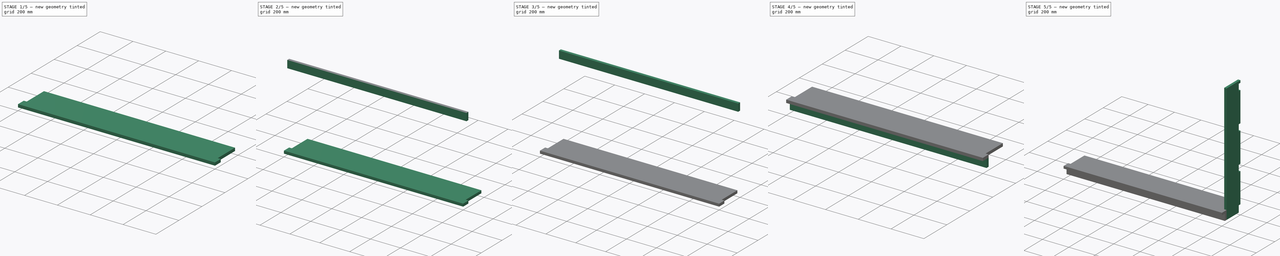
[diagram: build sequence overview — one tinted view per stage of 5, left to right]
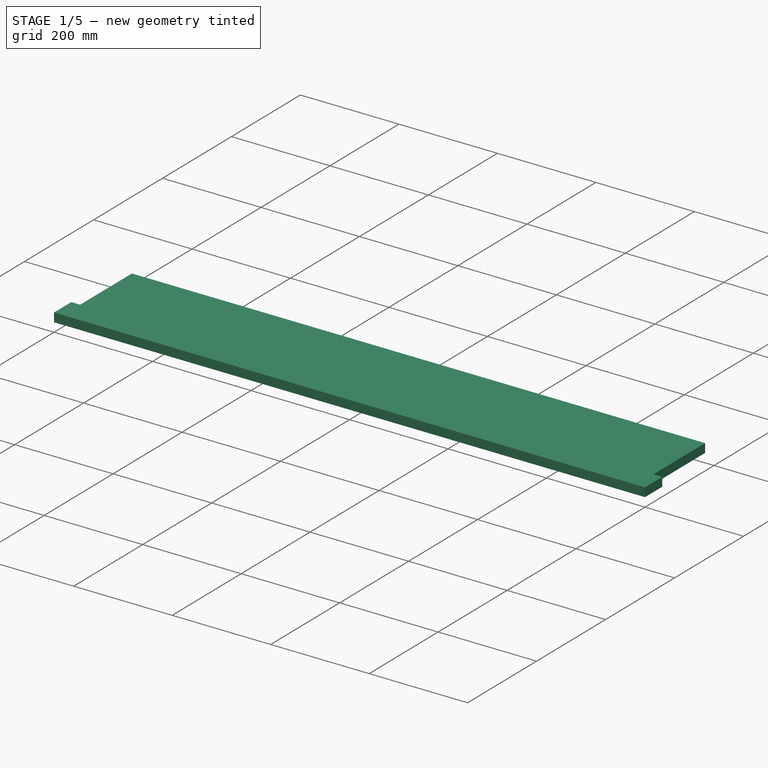
[diagram: stage 1 of 5 — iso view after this stage's code; geometry added in this stage tinted green]
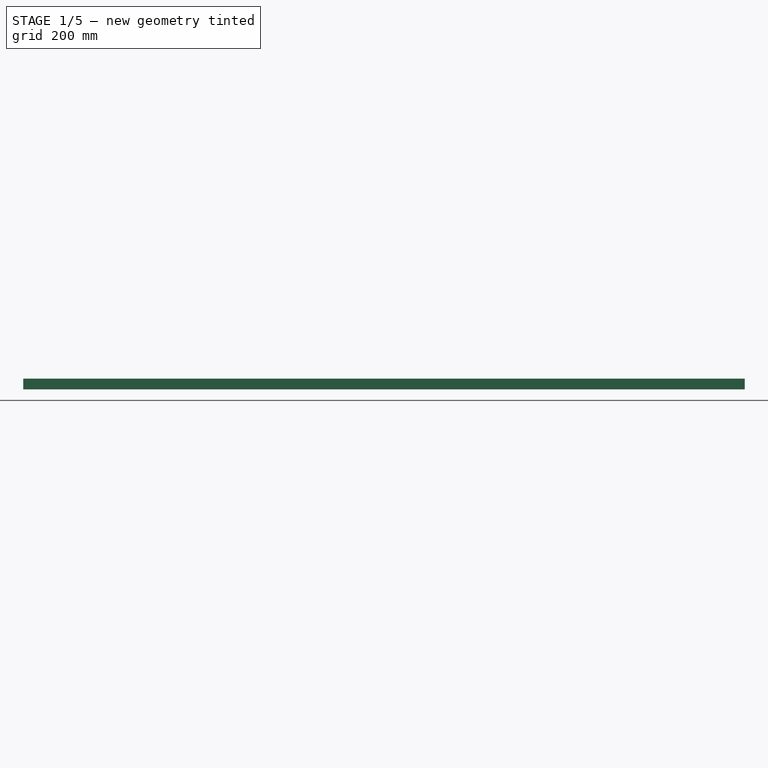
[diagram: stage 1 of 5 — front view after this stage's code; geometry added in this stage tinted green]
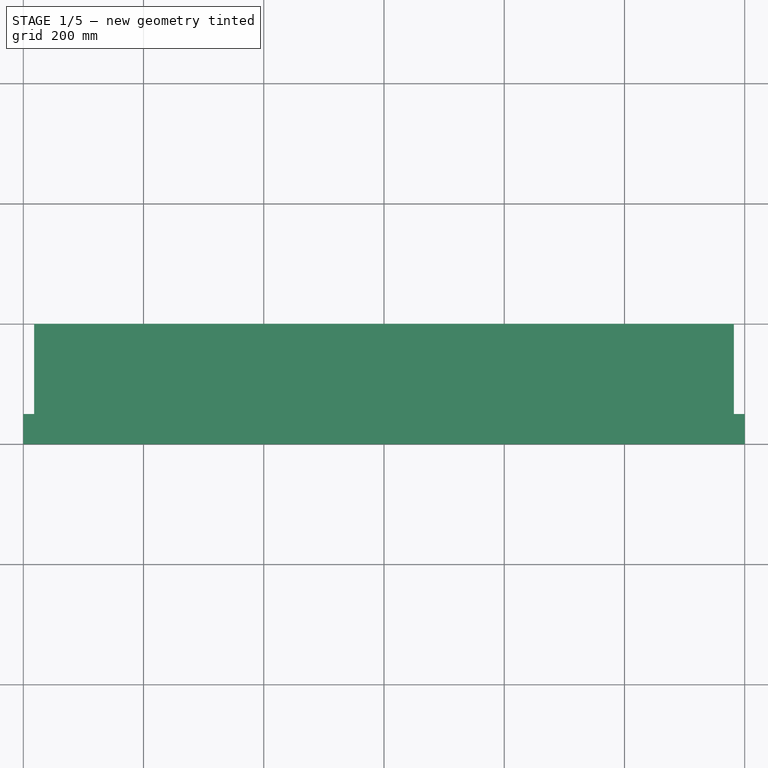
[diagram: stage 1 of 5 — top view after this stage's code; geometry added in this stage tinted green]
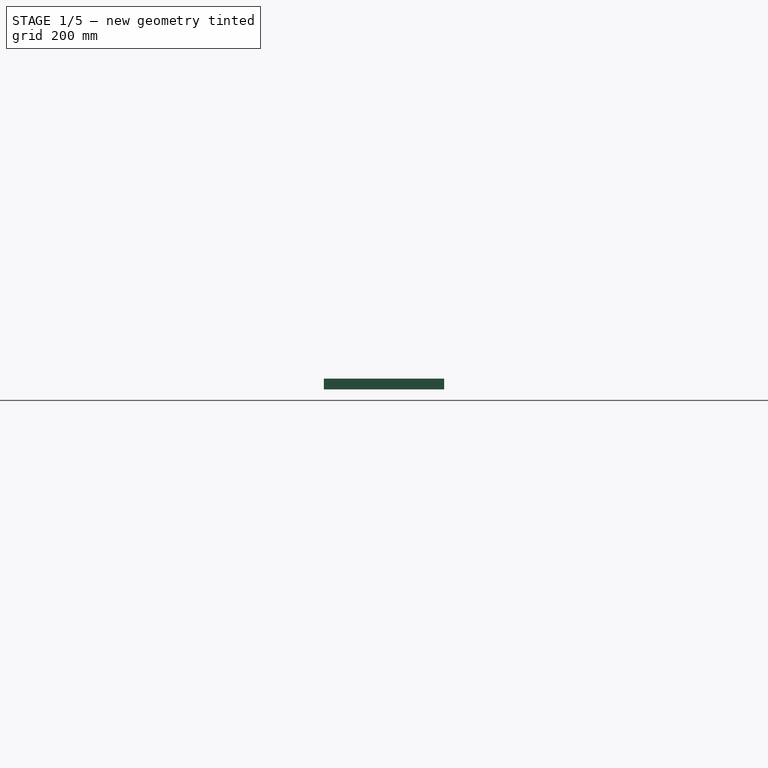
[diagram: stage 1 of 5 — right view after this stage's code; geometry added in this stage tinted green]
FCSTD DOCUMENT  (FreeCAD 0.20R29177 (Git))
Label: wall_shelves_1200x900
License: All rights reserved
LicenseURL: http://en.wikipedia.org/wiki/All_rights_reserved
objects: Part::FeaturePython×14, App::DocumentObjectGroup×4, Sketcher::SketchObject×3, Part::Part2DObjectPython×3, PartDesign::Pad×3, PartDesign::Body×3, PartDesign::CoordinateSystem×1, App::FeaturePython×1, App::Part×1
note: 30 computed .brp shape members not serialized (recipe doc carries the construction recipe); baked Part::Feature solids carry a one-line shape summary decoded from their .brp

FEATURE [PartDesign::Pad] Pad001  label="Pad_Shelf"
  Direction = (0,0,1)
  Length = 18
  Length2 = 10
  Profile = -> Clone2D001
  ReferenceAxis = -> Clone2D001 [N_Axis]
  Type = 0
FEATURE [Part::FeaturePython] Clone010  label="Body_Shelf_Template001"  # Draft clone (typed FeaturePython)
  AttacherType = Attacher::AttachEngine3D
  Fuse = false
  Objects = -> [Body002]
  Placement = pos=(1.1e-15,7.27e-14,327.333) rot=(0,0,1;4.71239rad)
  Scale = (1,1,1)
FEATURE [Part::FeaturePython] Clone011  label="Body_Shelf_Template002"  # Draft clone (typed FeaturePython)
  AttacherType = Attacher::AttachEngine3D
  Fuse = false
  Objects = -> [Clone010]
  Placement = pos=(0,1.343e-13,604.667) rot=(0,0,1;4.71239rad)
  Scale = (1,1,1)
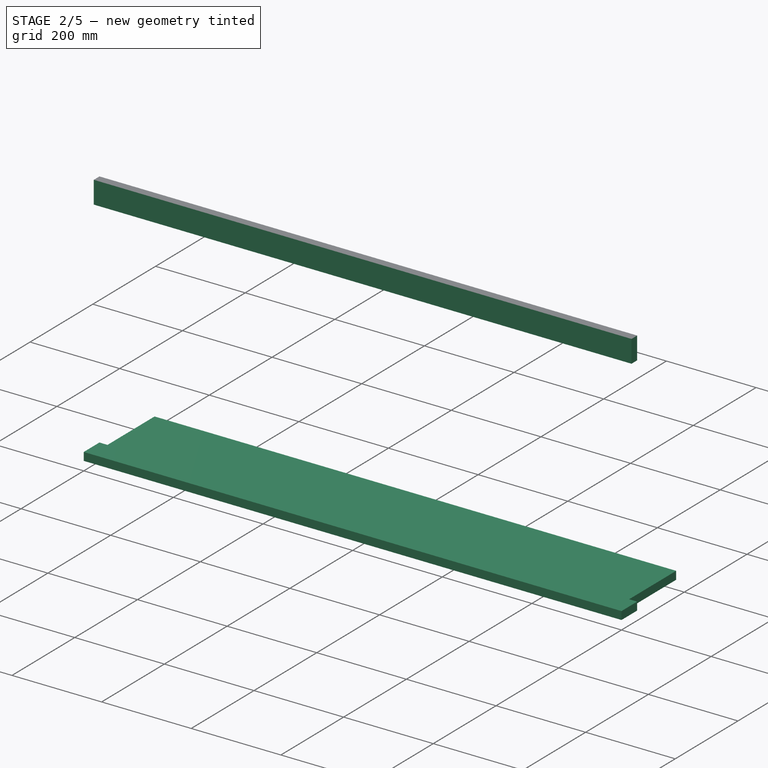
[diagram: stage 2 of 5 — iso view after this stage's code; geometry added in this stage tinted green]
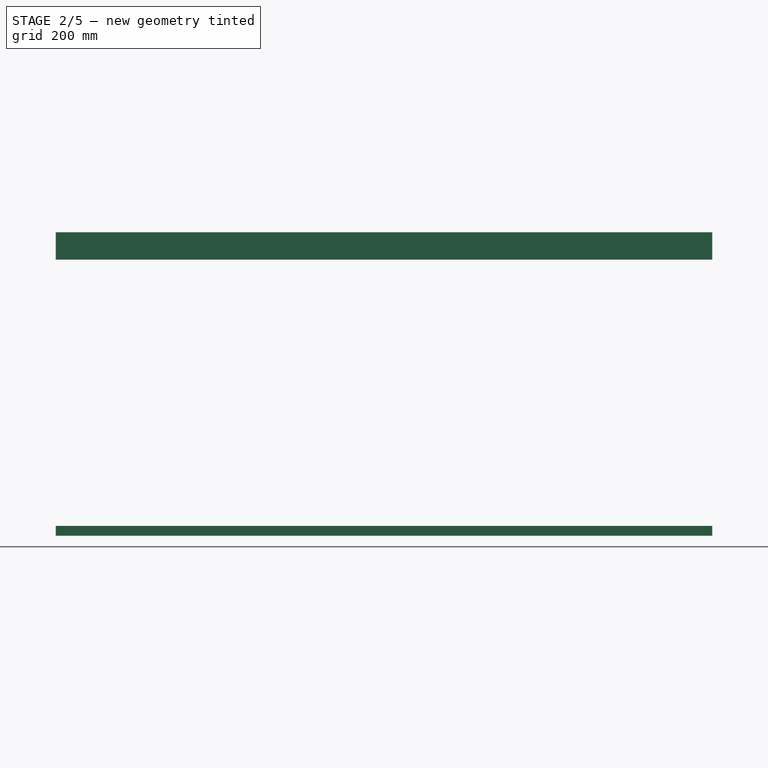
[diagram: stage 2 of 5 — front view after this stage's code; geometry added in this stage tinted green]
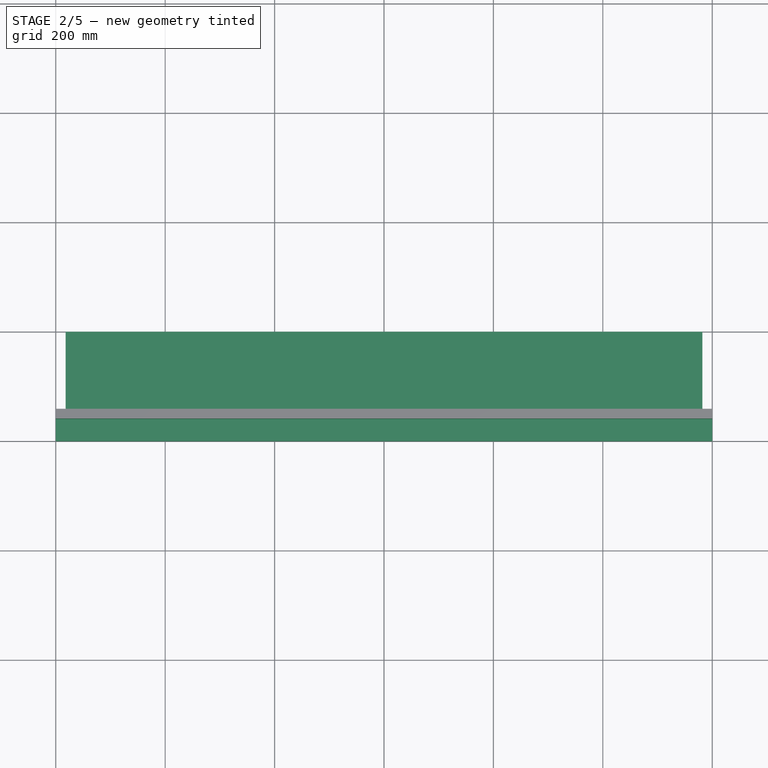
[diagram: stage 2 of 5 — top view after this stage's code; geometry added in this stage tinted green]
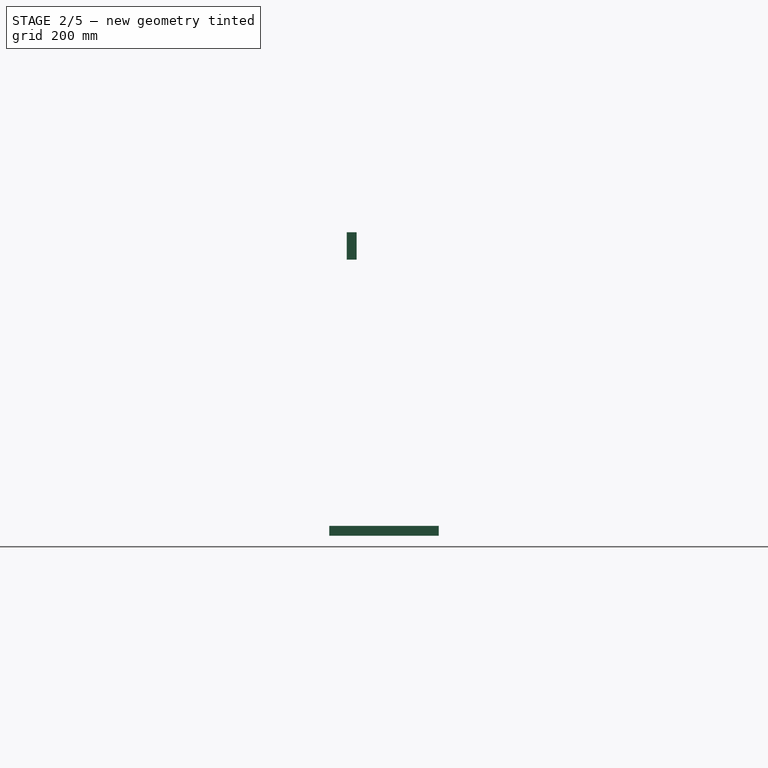
[diagram: stage 2 of 5 — right view after this stage's code; geometry added in this stage tinted green]
FEATURE [Sketcher::SketchObject] Sketch002  label="Sketch_Rib"
  FullyConstrained = true
  MapMode = 5
  Support = -> [XY_Plane]
  sketch-geometry (4):
    g0: LineSegment StartX=0 StartY=0 StartZ=0 EndX=1200 EndY=0 EndZ=0
    g1: LineSegment StartX=1200 StartY=0 StartZ=0 EndX=1200 EndY=50 EndZ=0
    g2: LineSegment StartX=1200 StartY=50 StartZ=0 EndX=0 EndY=50 EndZ=0
    g3: LineSegment StartX=0 StartY=50 StartZ=0 EndX=0 EndY=0 EndZ=0
  constraints (11):
    c: Coincident(g0,g1)
    c: Coincident(g1,g2)
    c: Coincident(g2,g3)
    c: Coincident(g3,g0)
    c: Horizontal(g0)
    c: Horizontal(g2)
    c: Vertical(g1)
    c: Vertical(g3)
    c: Coincident(g0,g-1)
    c: DistanceX(g0,g0) = 1200
    c: DistanceY(g1,g1) = 50
FEATURE [App::DocumentObjectGroup] Group  label="Root_Sketches"
  Group = -> [Sketch,Sketch001,Sketch002]
FEATURE [Part::Part2DObjectPython] Clone2D002  label="Sketch_Rib (2D)"  # Draft 2D object (typed FeaturePython)
  Fuse = false
  Objects = -> [Sketch002]
  Scale = (1,1,1)
FEATURE [PartDesign::Pad] Pad002  label="Pad_Rib"
  Direction = (0,0,1)
  Length = 18
  Length2 = 10
  Profile = -> Clone2D002
  ReferenceAxis = -> Clone2D002 [N_Axis]
  Type = 0
FEATURE [PartDesign::Body] Body  label="Body_Rib_Template"
  Group = -> [Clone2D002,Pad002]
  Origin = -> Origin
  Tip = -> Pad002
FEATURE [PartDesign::Body] Body001  label="Body_Side_Template"
  Group = -> [Pad]
  Origin = -> Origin002
  Tip = -> Pad
FEATURE [PartDesign::Body] Body002  label="Body_Shelf_Template"
  Group = -> [Pad001]
  Origin = -> Origin003
  Tip = -> Pad001
FEATURE [App::DocumentObjectGroup] Parts
  Group = -> [Body,Body001,Body002]
FEATURE [PartDesign::CoordinateSystem] LCS_Origin
  AttacherType = Attacher::AttachEngine3D
  MapMode = 2
  Support = -> [X_Axis004]
FEATURE [App::DocumentObjectGroup] Constraints
FEATURE [App::FeaturePython] Variables  # WARN: FeaturePython — macro-defined, semantics opaque (R4)
  Type = App::PropertyContainer
FEATURE [App::DocumentObjectGroup] Configurations
FEATURE [Part::FeaturePython] Clone  label="Body_Rib_Template001"  # Draft clone (typed FeaturePython)
  AttacherType = Attacher::AttachEngine3D
  Fuse = false
  Objects = -> [Body]
  Placement = pos=(-3.33e-14,-150,554.667) rot=(1,0,0;1.5708rad)
  Scale = (1,1,1)
FEATURE [Part::FeaturePython] Clone012  label="Body_Shelf_Template003"  # Draft clone (typed FeaturePython)
  AttacherType = Attacher::AttachEngine3D
  Fuse = false
  Objects = -> [Clone011]
  Placement = pos=(0,0,882) rot=(0,0,1;4.71239rad)
  Scale = (1,1,1)
FEATURE [Part::FeaturePython] Clone013  label="Body_Shelf_Template004"  # Draft clone (typed FeaturePython)
  AttacherType = Attacher::AttachEngine3D
  Fuse = false
  Objects = -> [Clone012]
  Placement = pos=(0,0,50) rot=(0,0,-1;1.5708rad)
  Scale = (1,1,1)
FEATURE [App::Part] Model
  AssemblyType = Part::Link
  Group = -> [LCS_Origin,Constraints,Variables,Configurations,Clone,Clone001,Clone002,Clone003,Clone004,Clone005,Clone006,Clone007,Clone008,Clone009,Clone010,Clone011,Clone012,Clone013]
  Origin = -> Origin004
  Type = Assembly
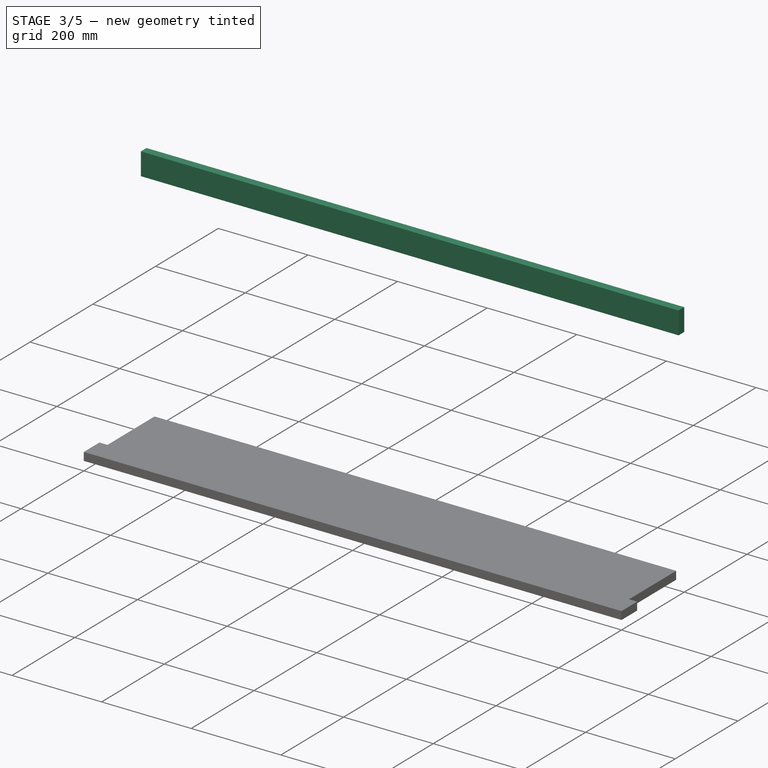
[diagram: stage 3 of 5 — iso view after this stage's code; geometry added in this stage tinted green]
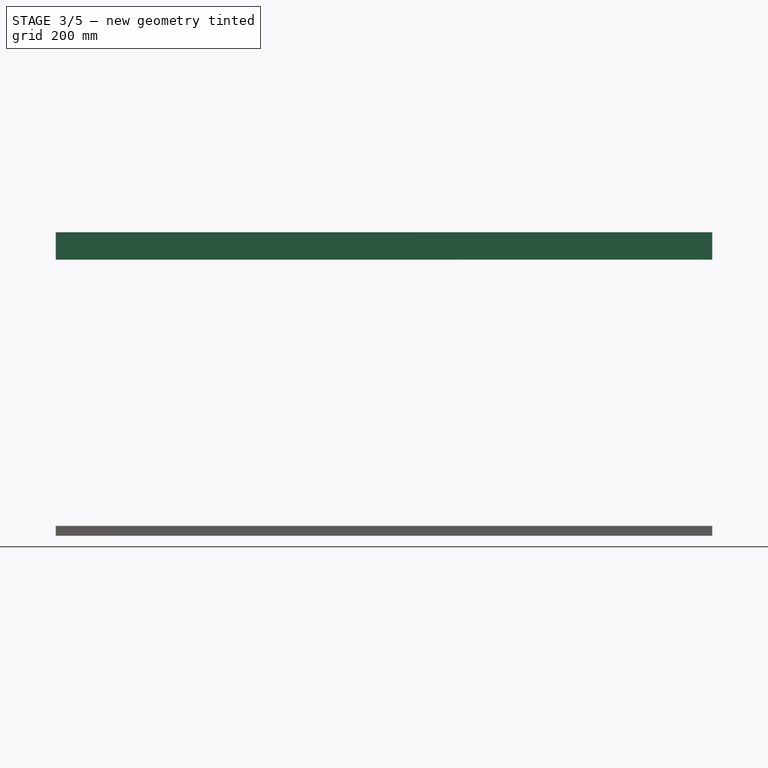
[diagram: stage 3 of 5 — front view after this stage's code; geometry added in this stage tinted green]
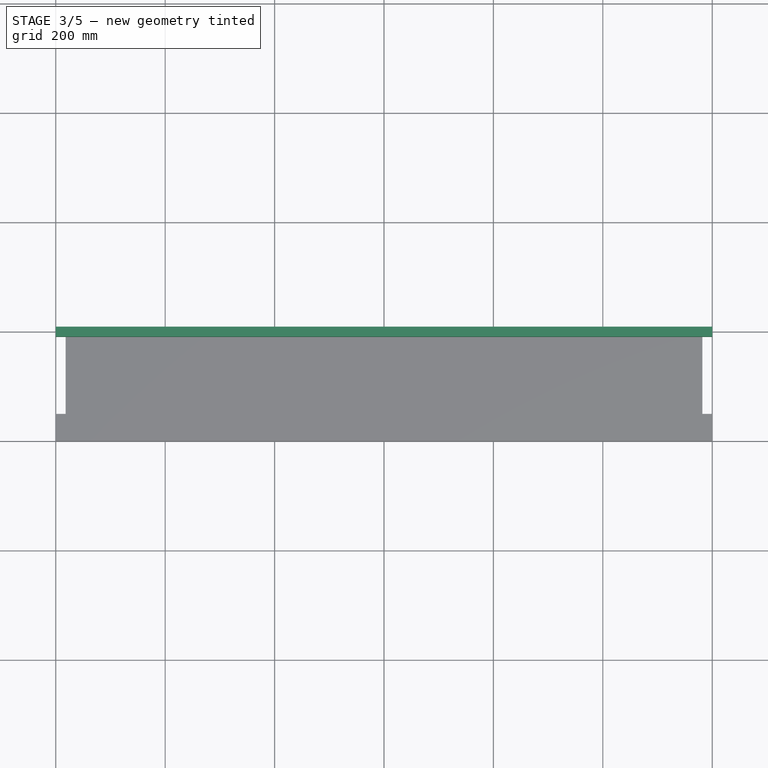
[diagram: stage 3 of 5 — top view after this stage's code; geometry added in this stage tinted green]
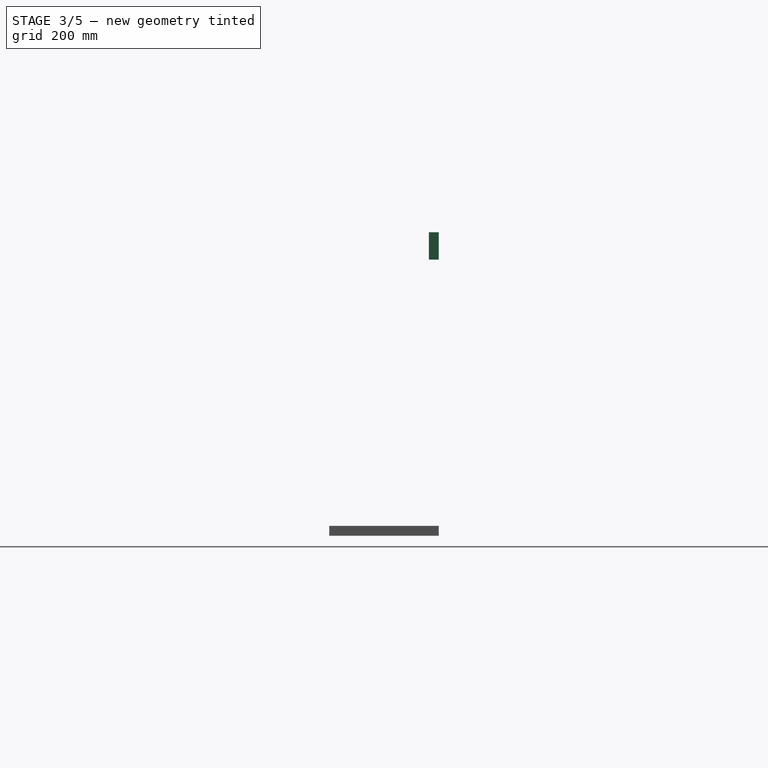
[diagram: stage 3 of 5 — right view after this stage's code; geometry added in this stage tinted green]
FEATURE [Part::FeaturePython] Clone001  label="Body_Rib_Template002"  # Draft clone (typed FeaturePython)
  AttacherType = Attacher::AttachEngine3D
  Fuse = false
  Objects = -> [Clone]
  Placement = pos=(0,0,0) rot=(1,0,0;1.5708rad)
  Scale = (1,1,1)
FEATURE [Part::FeaturePython] Clone002  label="Body_Rib_Template003"  # Draft clone (typed FeaturePython)
  AttacherType = Attacher::AttachEngine3D
  Fuse = false
  Objects = -> [Clone001]
  Placement = pos=(-3.6e-15,4.02e-14,277.333) rot=(1,0,0;1.5708rad)
  Scale = (1,1,1)
FEATURE [Part::FeaturePython] Clone003  label="Body_Rib_Template004"  # Draft clone (typed FeaturePython)
  AttacherType = Attacher::AttachEngine3D
  Fuse = false
  Objects = -> [Clone002]
  Placement = pos=(0,1.232e-13,554.667) rot=(1,0,0;1.5708rad)
  Scale = (1,1,1)
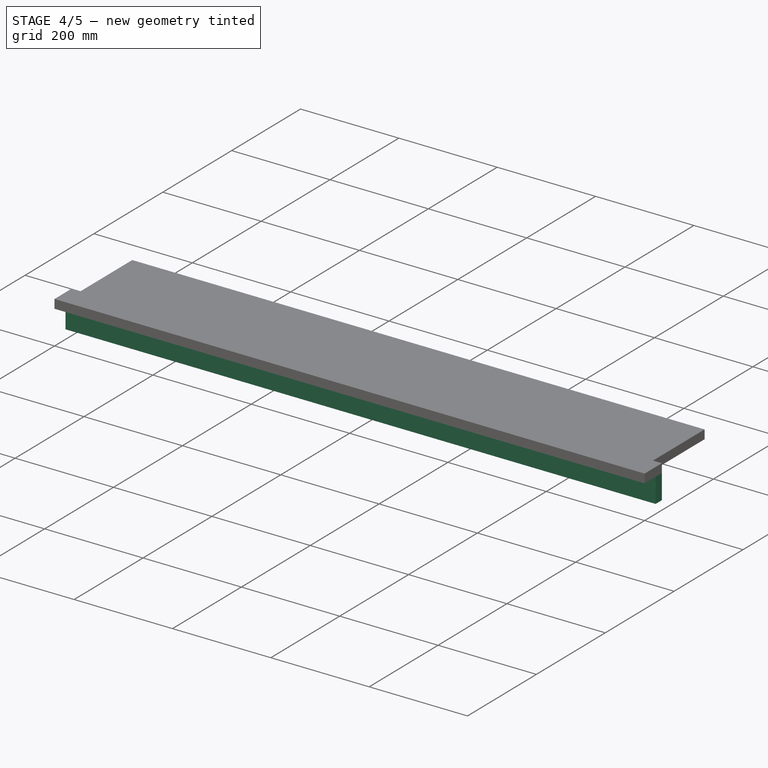
[diagram: stage 4 of 5 — iso view after this stage's code; geometry added in this stage tinted green]
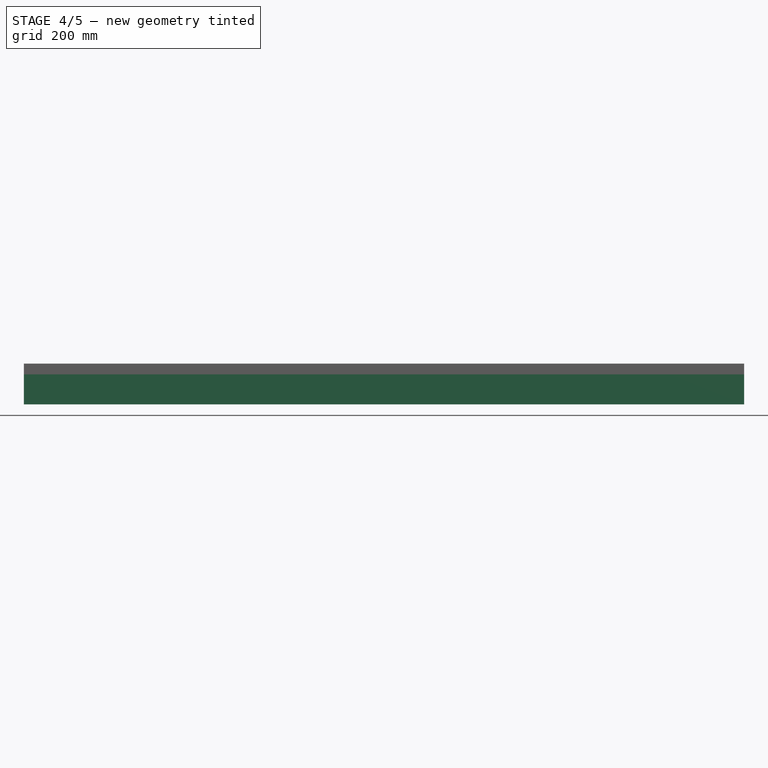
[diagram: stage 4 of 5 — front view after this stage's code; geometry added in this stage tinted green]
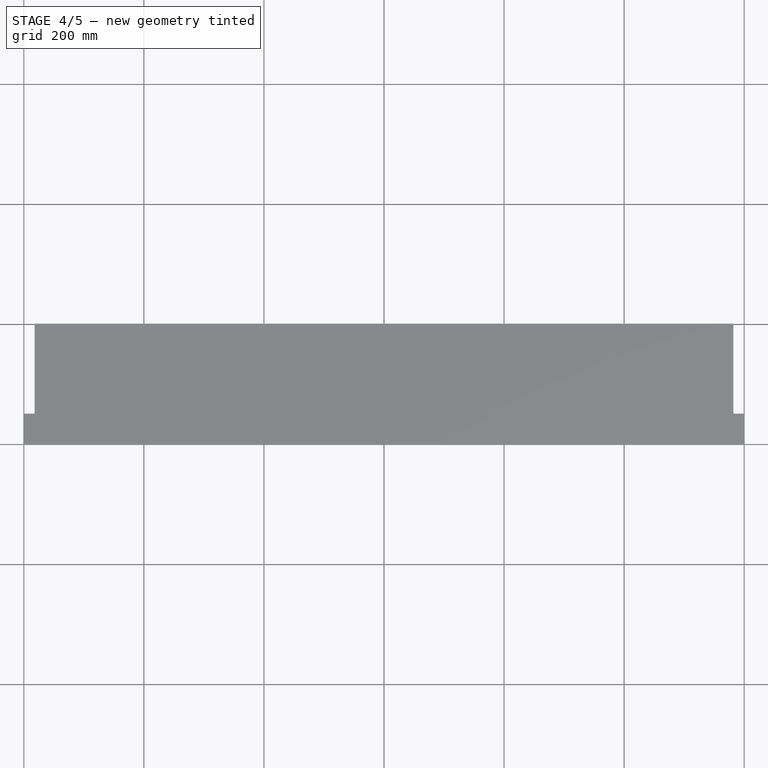
[diagram: stage 4 of 5 — top view after this stage's code; geometry added in this stage tinted green]
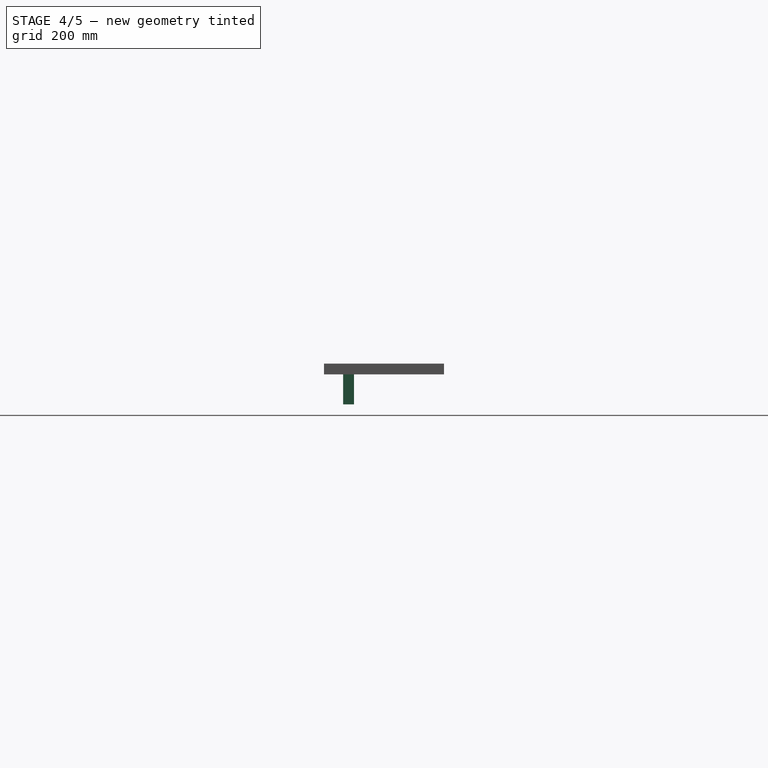
[diagram: stage 4 of 5 — right view after this stage's code; geometry added in this stage tinted green]
FEATURE [Part::FeaturePython] Clone004  label="Body_Rib_Template005"  # Draft clone (typed FeaturePython)
  AttacherType = Attacher::AttachEngine3D
  Fuse = false
  Objects = -> [Clone003]
  Placement = pos=(0,1.847e-13,832) rot=(1,0,0;1.5708rad)
  Scale = (1,1,1)
FEATURE [Part::FeaturePython] Clone005  label="Body_Rib_Template006"  # Draft clone (typed FeaturePython)
  AttacherType = Attacher::AttachEngine3D
  Fuse = false
  Objects = -> [Clone004]
  Placement = pos=(0,-150,832) rot=(1,0,0;1.5708rad)
  Scale = (1,1,1)
FEATURE [Part::FeaturePython] Clone008  label="Body_Rib_Template007"  # Draft clone (typed FeaturePython)
  AttacherType = Attacher::AttachEngine3D
  Fuse = false
  Objects = -> [Clone005]
  Placement = pos=(-3.22e-14,-150,277.333) rot=(1,0,0;1.5708rad)
  Scale = (1,1,1)
FEATURE [Part::FeaturePython] Clone009  label="Body_Rib_Template008"  # Draft clone (typed FeaturePython)
  AttacherType = Attacher::AttachEngine3D
  Fuse = false
  Objects = -> [Clone008]
  Placement = pos=(0,-150,0) rot=(1,0,0;1.5708rad)
  Scale = (1,1,1)
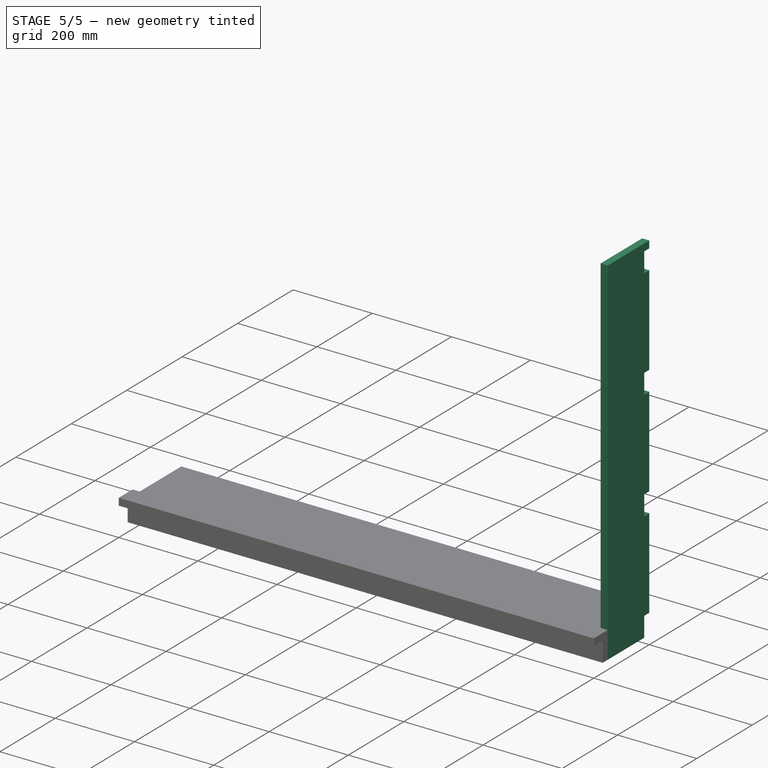
[diagram: stage 5 of 5 — iso view after this stage's code; geometry added in this stage tinted green]
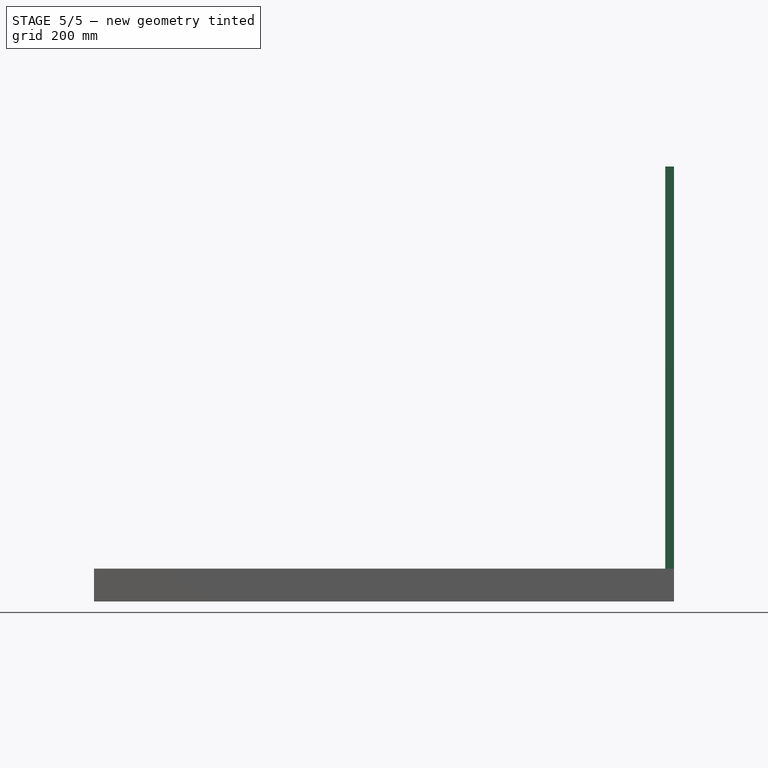
[diagram: stage 5 of 5 — front view after this stage's code; geometry added in this stage tinted green]
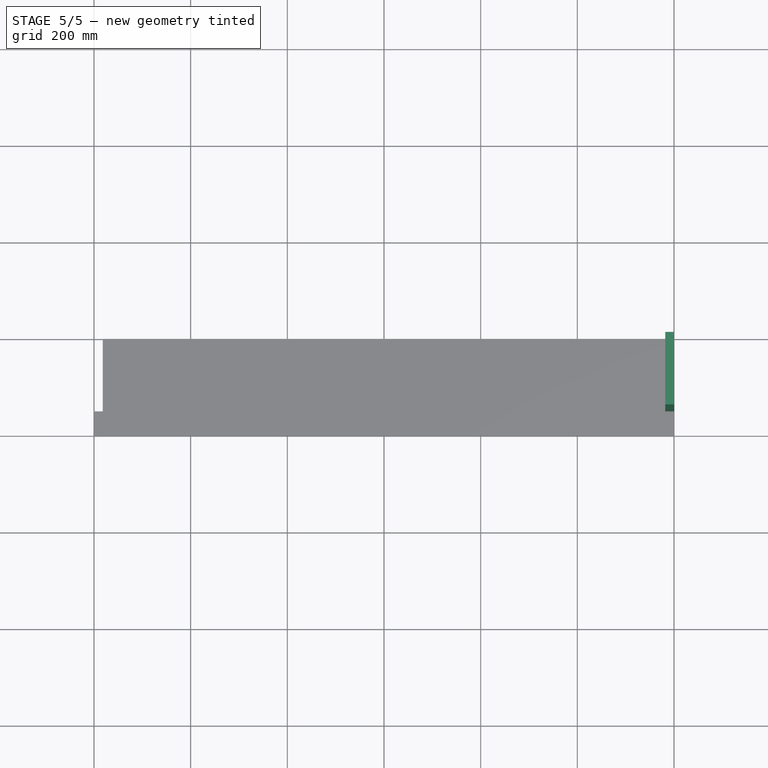
[diagram: stage 5 of 5 — top view after this stage's code; geometry added in this stage tinted green]
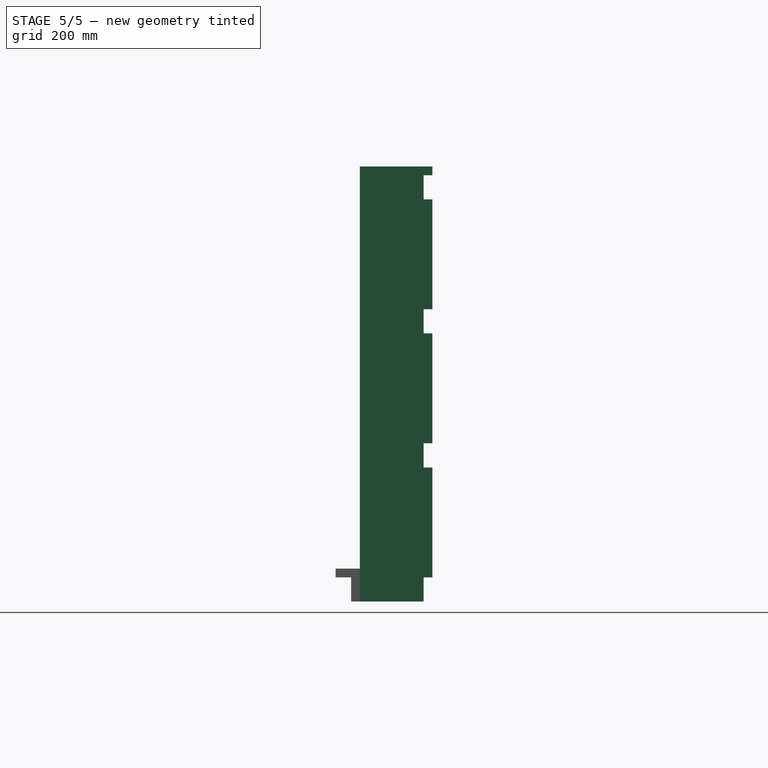
[diagram: stage 5 of 5 — right view after this stage's code; geometry added in this stage tinted green]
FEATURE [Sketcher::SketchObject] Sketch  label="Sketch_Side"
  FullyConstrained = true
  MapMode = 5
  Support = -> [XY_Plane]
  sketch-geometry (18):
    g0: LineSegment StartX=18 StartY=0 StartZ=0 EndX=150 EndY=0 EndZ=0
    g1: LineSegment StartX=150 StartY=0 StartZ=0 EndX=150 EndY=900 EndZ=0
    g2: LineSegment StartX=150 StartY=900 StartZ=0 EndX=0 EndY=900 EndZ=0
    g3: LineSegment StartX=0 StartY=900 StartZ=0 EndX=0 EndY=882 EndZ=0
    g4: LineSegment StartX=0 StartY=882 StartZ=0 EndX=18 EndY=882 EndZ=0
    g5: LineSegment StartX=18 StartY=882 StartZ=0 EndX=18 EndY=832 EndZ=0
    g6: LineSegment StartX=18 StartY=832 StartZ=0 EndX=0 EndY=832 EndZ=0
    g7: LineSegment StartX=0 StartY=832 StartZ=0 EndX=0 EndY=604.667 EndZ=0
    g8: LineSegment StartX=0 StartY=604.667 StartZ=0 EndX=18 EndY=604.667 EndZ=0
    g9: LineSegment StartX=18 StartY=604.667 StartZ=0 EndX=18 EndY=554.667 EndZ=0
    g10: LineSegment StartX=18 StartY=554.667 StartZ=0 EndX=0 EndY=554.667 EndZ=0
    g11: LineSegment StartX=0 StartY=554.667 StartZ=0 EndX=0 EndY=327.333 EndZ=0
    g12: LineSegment StartX=0 StartY=327.333 StartZ=0 EndX=18 EndY=327.333 EndZ=0
    g13: LineSegment StartX=18 StartY=327.333 StartZ=0 EndX=18 EndY=277.333 EndZ=0
    g14: LineSegment StartX=18 StartY=277.333 StartZ=0 EndX=0 EndY=277.333 EndZ=0
    g15: LineSegment StartX=0 StartY=277.333 StartZ=0 EndX=0 EndY=50 EndZ=0
    g16: LineSegment StartX=0 StartY=50 StartZ=0 EndX=18 EndY=50 EndZ=0
    g17: LineSegment StartX=18 StartY=50 StartZ=0 EndX=18 EndY=0 EndZ=0
  constraints (52):
    c: PointOnObject(g0,g-1)
    c: Horizontal(g0)
    c: Coincident(g0,g1)
    c: Vertical(g1)
    c: Coincident(g1,g2)
    c: PointOnObject(g2,g-2)
    c: Horizontal(g2)
    c: Coincident(g2,g3)
    c: PointOnObject(g3,g-2)
    c: Coincident(g3,g4)
    c: Coincident(g4,g5)
    c: Coincident(g5,g6)
    c: Coincident(g6,g7)
    c: Coincident(g7,g8)
    c: Horizontal(g8)
    c: Coincident(g8,g9)
    c: Vertical(g9)
    c: Coincident(g9,g10)
    c: PointOnObject(g10,g-2)
    c: Horizontal(g10)
    c: Coincident(g10,g11)
    c: PointOnObject(g11,g-2)
    c: Coincident(g11,g12)
    c: Coincident(g12,g13)
    c: Coincident(g13,g14)
    c: Coincident(g14,g15)
    c: Coincident(g15,g16)
    c: Coincident(g16,g17)
    c: Tangent(g5,g9)
    c: Tangent(g13,g9)
    c: Tangent(g17,g13)
    c: Tangent(g3,g7)
    c: Tangent(g11,g15)
    c: Horizontal(g14)
    c: Horizontal(g16)
    c: Horizontal(g4)
    c: Horizontal(g6)
    c: Equal(g13,g17)
    c: Equal(g17,g9)
    c: Equal(g9,g5)
    c: Coincident(g0,g17)
    c: DistanceY(g1,g1) = 900
    c: DistanceX(g2,g2) = 150
    c: DistanceX(g4,g4) = 18
    c: Horizontal(g12)
    c: DistanceY(g5,g5) = 50
    c: DistanceY(g3,g3) = 18
    c: Equal(g15,g11)
    c: Equal(g11,g7)
    c: DistanceY(g-1,g14) = 277.333
    c: DistanceY(g-1,g10) = 554.667
    c: DistanceY(g-1,g6) = 832
FEATURE [Sketcher::SketchObject] Sketch001  label="Sketch_Shelf"
  FullyConstrained = true
  sketch-geometry (8):
    g0: LineSegment StartX=150 StartY=0 StartZ=0 EndX=200 EndY=0 EndZ=0
    g1: LineSegment StartX=200 StartY=0 StartZ=0 EndX=200 EndY=1200 EndZ=0
    g2: LineSegment StartX=200 StartY=1200 StartZ=0 EndX=150 EndY=1200 EndZ=0
    g3: LineSegment StartX=150 StartY=1200 StartZ=0 EndX=150 EndY=1182 EndZ=0
    g4: LineSegment StartX=150 StartY=1182 StartZ=0 EndX=0 EndY=1182 EndZ=0
    g5: LineSegment StartX=0 StartY=1182 StartZ=0 EndX=0 EndY=18 EndZ=0
    g6: LineSegment StartX=0 StartY=18 StartZ=0 EndX=150 EndY=18 EndZ=0
    g7: LineSegment StartX=150 StartY=18 StartZ=0 EndX=150 EndY=0 EndZ=0
  constraints (23):
    c: PointOnObject(g0,g-1)
    c: PointOnObject(g0,g-1)
    c: Coincident(g0,g1)
    c: Coincident(g1,g2)
    c: Horizontal(g2)
    c: Coincident(g2,g3)
    c: Coincident(g3,g4)
    c: Coincident(g4,g5)
    c: PointOnObject(g5,g-2)
    c: Vertical(g5)
    c: Coincident(g5,g6)
    c: Coincident(g6,g7)
    c: Coincident(g7,g0)
    c: Vertical(g7)
    c: Horizontal(g6)
    c: Horizontal(g4)
    c: Tangent(g3,g7)
    c: Vertical(g1)
    c: Equal(g7,g3)
    c: DistanceY(g1,g1) = 1200
    c: DistanceX(g-1,g0) = 200
    c: DistanceX(g6,g6) = 150
    c: DistanceY(g7,g7) = 18
FEATURE [Part::Part2DObjectPython] Clone2D  label="Sketch_Side (2D)"  # Draft 2D object (typed FeaturePython)
  Fuse = false
  Objects = -> [Sketch]
  Scale = (1,1,1)
FEATURE [Part::Part2DObjectPython] Clone2D001  label="Sketch_Shelf (2D)"  # Draft 2D object (typed FeaturePython)
  Fuse = false
  Objects = -> [Sketch001]
  Scale = (1,1,1)
FEATURE [PartDesign::Pad] Pad  label="Pad_Side"
  Direction = (0,0,1)
  Length = 18
  Length2 = 10
  Profile = -> Clone2D
  ReferenceAxis = -> Clone2D [N_Axis]
  Type = 0
FEATURE [Part::FeaturePython] Clone006  label="Body_Side_Template001"  # Draft clone (typed FeaturePython)
  AttacherType = Attacher::AttachEngine3D
  Fuse = false
  Objects = -> [Body001]
  Placement = pos=(18,-4e-15,0) rot=(-0.57735,0.57735,0.57735;4.18879rad)
  Scale = (1,1,1)
FEATURE [Part::FeaturePython] Clone007  label="Body_Side_Template002"  # Draft clone (typed FeaturePython)
  AttacherType = Attacher::AttachEngine3D
  Fuse = false
  Objects = -> [Clone006]
  Placement = pos=(1200,0,0) rot=(-0.57735,0.57735,0.57735;4.18879rad)
  Scale = (1,1,1)
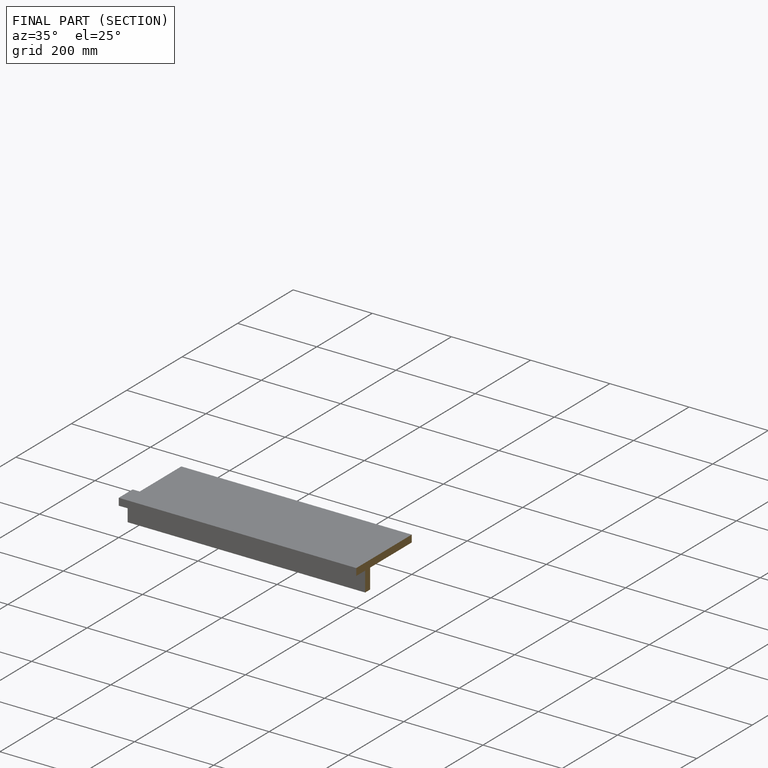
[diagram: finished part — half-section view (interior)]
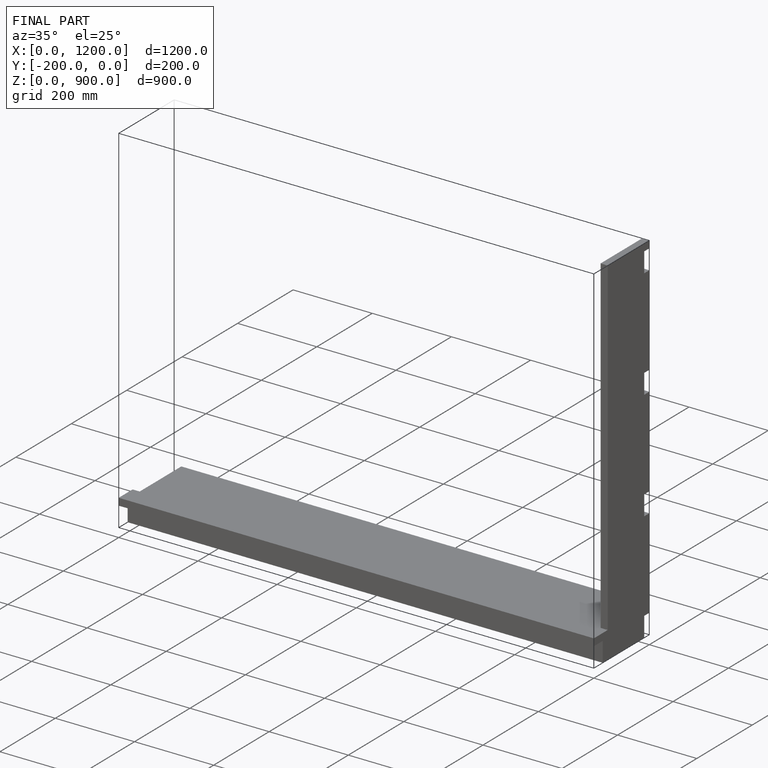
[diagram: finished part — iso view with bounding-box wireframe]
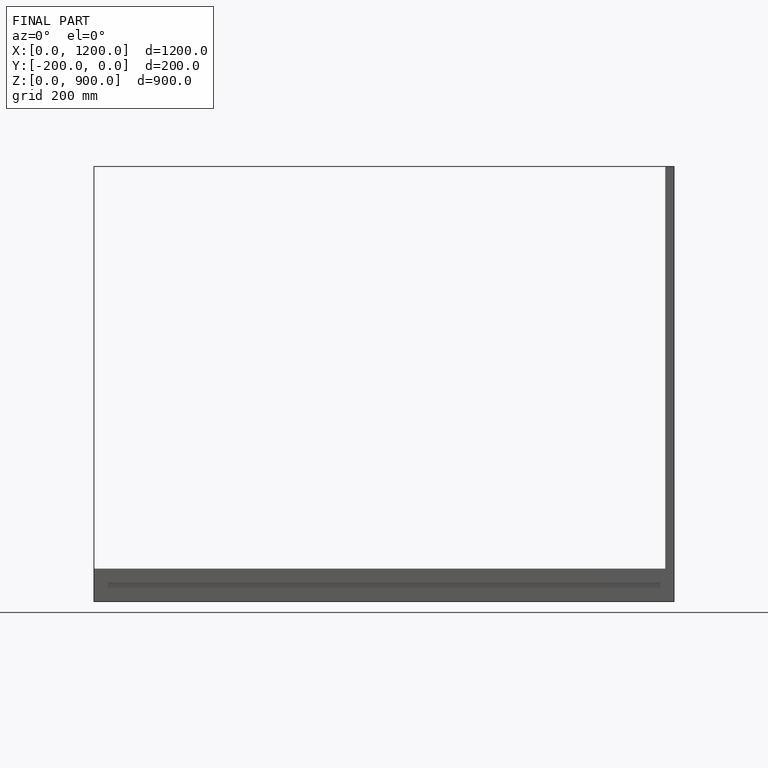
[diagram: finished part — front view with bounding-box wireframe]
